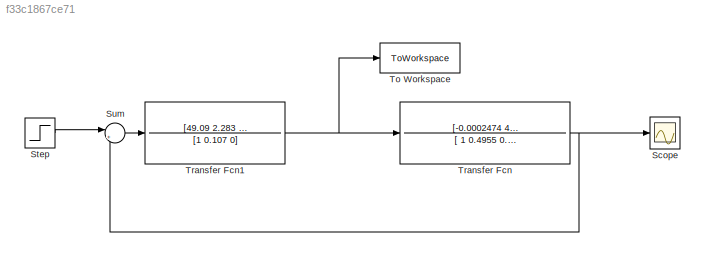
MODEL slx_f33c1867ce71
KIND model
BLOCK [Scope] Scope
  Floating = off
  NumInputPorts = 1
  Ports = [1]
  ShowLegends = off
BLOCK [Step] Step
  SampleTime = 0
  Time = 0
BLOCK [Sum] Sum
  IconShape = round
  InputSameDT = off
  Inputs = |+-
  OutDataTypeStr = Inherit: Inherit via internal rule
  Ports = [2, 1]
  SaturateOnIntegerOverflow = off
BLOCK [ToWorkspace] To Workspace
  FixptAsFi = on
  MaxDataPoints = inf
  Ports = [1]
  SampleTime = -1
  Save2DSignal = 3-D array (concatenate along third dimension)
  SaveFormat = Structure With Time
  VariableName = v_manipulada
BLOCK [TransferFcn] Transfer Fcn
  Denominator = [ 1 0.4955 0.0269 0.0002243]
  Numerator = [-0.0002474 4.667e-05]
BLOCK [TransferFcn] Transfer Fcn1
  Denominator = [1 0.107 0]
  Numerator = [49.09 2.283 0.01917]
LINE Step:1 -> Sum:1
LINE Sum:1 -> Transfer Fcn1:1
NET Transfer Fcn1:1 -> To Workspace:1, Transfer Fcn:1
NET Transfer Fcn:1 -> Scope:1, Sum:2
note: NET lines group one-source signal fan-out (src -> all destinations, sorted); 1:1 wires keep LINE
